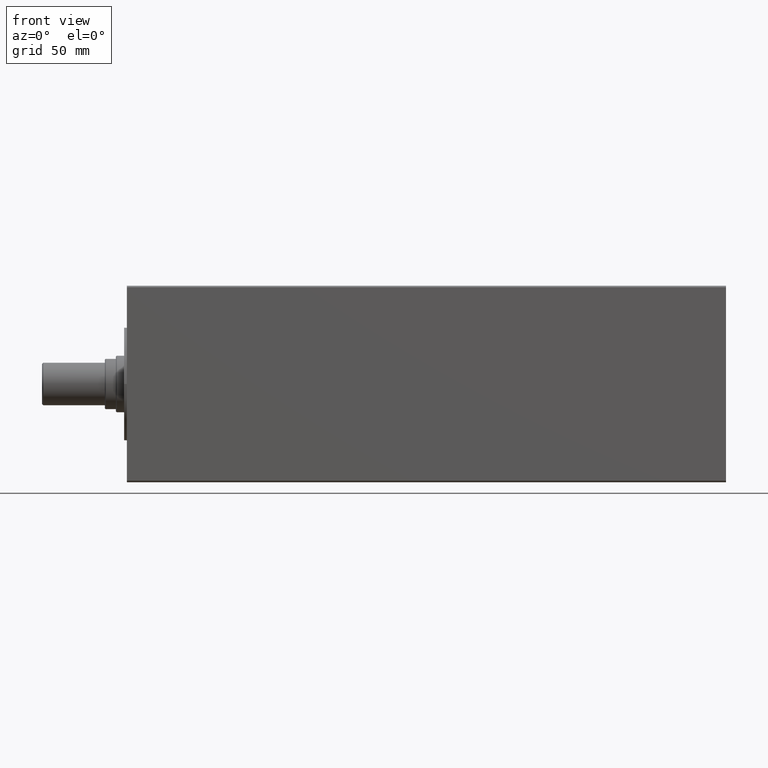
[diagram: clean part render]
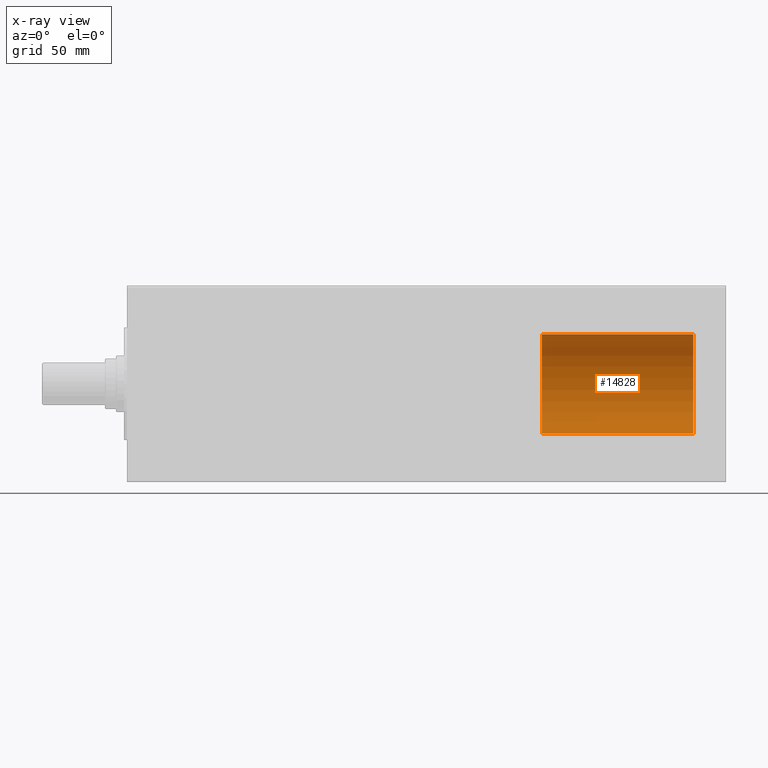
[diagram: x-ray — body ghosted, one internal face saturated and labeled with its STEP entity id]
A machine part, front view, then the same camera in x-ray: the body is ghosted and one INTERNAL B-rep face — a face not visible from any outside direction — is saturated and labeled: STEP entity #14828.
In plain terms, the highlighted cylindrical surface (partial cylindrical patch) has radius 31.5 mm, axis along (1, -0, -0).
Its self-contained STEP definition (entity closure, byte-faithful):
#286 = LINE ( 'NONE', #14022, #42096 ) ;
#2450 = CARTESIAN_POINT ( 'NONE',  ( 31.50000000000000000, 3.857637417314161900E-15, 96.20000000000000284 ) ) ;
#2517 = CARTESIAN_POINT ( 'NONE',  ( 31.50000000000000000, 3.857637417314161900E-15, 0.000000000000000000 ) ) ;
#7743 = CYLINDRICAL_SURFACE ( 'NONE', #10847, 31.50000000000000000 ) ;
#10847 = AXIS2_PLACEMENT_3D ( 'NONE', #24496, #28158, #38693 ) ;
#11475 = ORIENTED_EDGE ( 'NONE', *, *, #22841, .F. ) ;
#11763 = CIRCLE ( 'NONE', #37369, 31.50000000000000000 ) ;
#12411 = EDGE_LOOP ( 'NONE', ( #11475, #16254, #22168, #23355 ) ) ;
#13302 = CARTESIAN_POINT ( 'NONE',  ( -31.50000000000000000, 0.000000000000000000, 96.20000000000000284 ) ) ;
#13416 = CARTESIAN_POINT ( 'NONE',  ( 0.000000000000000000, 0.000000000000000000, 96.20000000000000284 ) ) ;
#14022 = CARTESIAN_POINT ( 'NONE',  ( -31.50000000000000000, 0.000000000000000000, 96.20000000000000284 ) ) ;
#14828 = ADVANCED_FACE ( 'NONE', ( #31604 ), #7743, .T. ) ;
#16003 = EDGE_CURVE ( 'NONE', #21998, #44641, #29802, .T. ) ;
#16254 = ORIENTED_EDGE ( 'NONE', *, *, #16003, .T. ) ;
#16874 = VERTEX_POINT ( 'NONE', #13302 ) ;
#17616 = VERTEX_POINT ( 'NONE', #42719 ) ;
#17906 = DIRECTION ( 'NONE',  ( -0.000000000000000000, -0.000000000000000000, -1.000000000000000000 ) ) ;
#19924 = DIRECTION ( 'NONE',  ( -0.000000000000000000, -0.000000000000000000, -1.000000000000000000 ) ) ;
#21998 = VERTEX_POINT ( 'NONE', #2450 ) ;
#22168 = ORIENTED_EDGE ( 'NONE', *, *, #40904, .T. ) ;
#22841 = EDGE_CURVE ( 'NONE', #21998, #16874, #11763, .T. ) ;
#23355 = ORIENTED_EDGE ( 'NONE', *, *, #32433, .F. ) ;
#24496 = CARTESIAN_POINT ( 'NONE',  ( 0.000000000000000000, 0.000000000000000000, 96.20000000000000284 ) ) ;
#25353 = DIRECTION ( 'NONE',  ( 1.000000000000000000, 0.000000000000000000, 0.000000000000000000 ) ) ;
#26042 = CARTESIAN_POINT ( 'NONE',  ( 0.000000000000000000, 0.000000000000000000, 0.000000000000000000 ) ) ;
#26367 = CARTESIAN_POINT ( 'NONE',  ( 31.50000000000000000, 3.857637417314161900E-15, 96.20000000000000284 ) ) ;
#28158 = DIRECTION ( 'NONE',  ( -0.000000000000000000, -0.000000000000000000, -1.000000000000000000 ) ) ;
#29802 = LINE ( 'NONE', #26367, #31446 ) ;
#31446 = VECTOR ( 'NONE', #19924, 1000.000000000000000 ) ;
#31604 = FACE_OUTER_BOUND ( 'NONE', #12411, .T. ) ;
#32433 = EDGE_CURVE ( 'NONE', #16874, #17616, #286, .T. ) ;
#32919 = DIRECTION ( 'NONE',  ( 0.000000000000000000, 0.000000000000000000, 1.000000000000000000 ) ) ;
#36629 = CIRCLE ( 'NONE', #43213, 31.50000000000000000 ) ;
#37369 = AXIS2_PLACEMENT_3D ( 'NONE', #13416, #45263, #37917 ) ;
#37917 = DIRECTION ( 'NONE',  ( 1.000000000000000000, 0.000000000000000000, 0.000000000000000000 ) ) ;
#38693 = DIRECTION ( 'NONE',  ( -1.000000000000000000, 0.000000000000000000, 0.000000000000000000 ) ) ;
#40904 = EDGE_CURVE ( 'NONE', #44641, #17616, #36629, .T. ) ;
#42096 = VECTOR ( 'NONE', #17906, 1000.000000000000000 ) ;
#42719 = CARTESIAN_POINT ( 'NONE',  ( -31.50000000000000000, 0.000000000000000000, 0.000000000000000000 ) ) ;
#43213 = AXIS2_PLACEMENT_3D ( 'NONE', #26042, #32919, #25353 ) ;
#44641 = VERTEX_POINT ( 'NONE', #2517 ) ;
#45263 = DIRECTION ( 'NONE',  ( 0.000000000000000000, 0.000000000000000000, 1.000000000000000000 ) ) ;